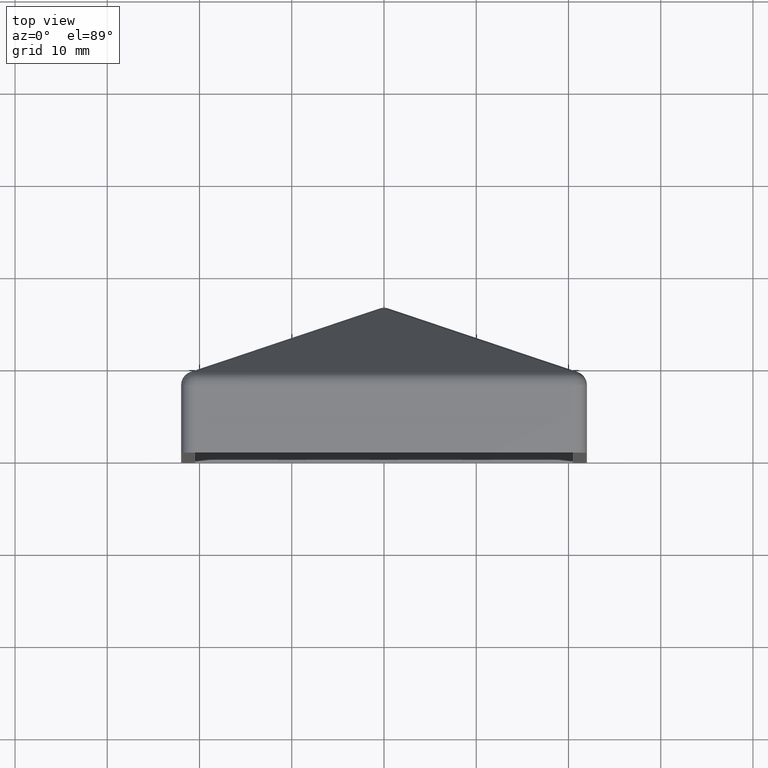
[diagram: clean part render]
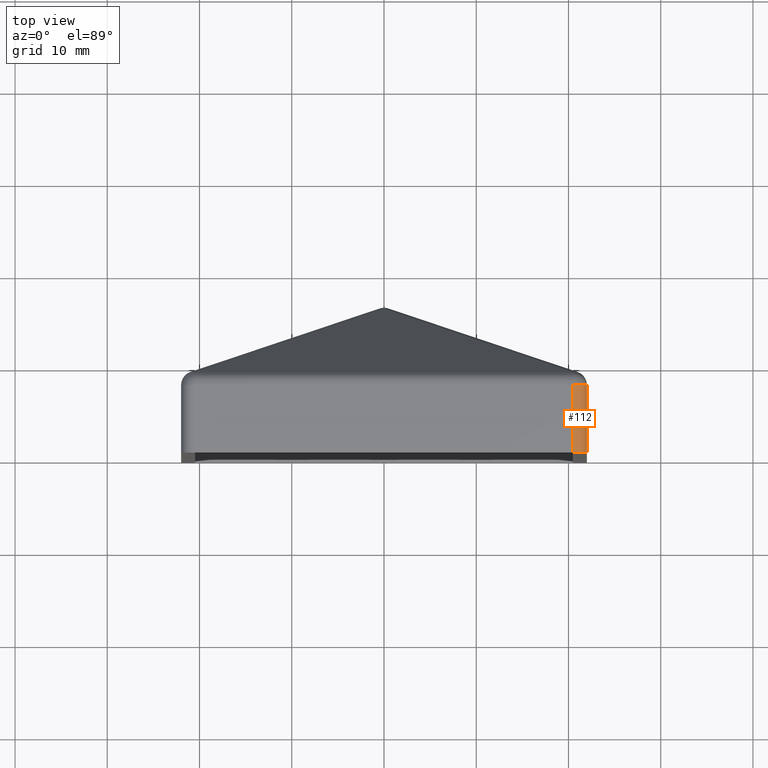
[diagram: same view with one face highlighted and labeled with its STEP entity id]
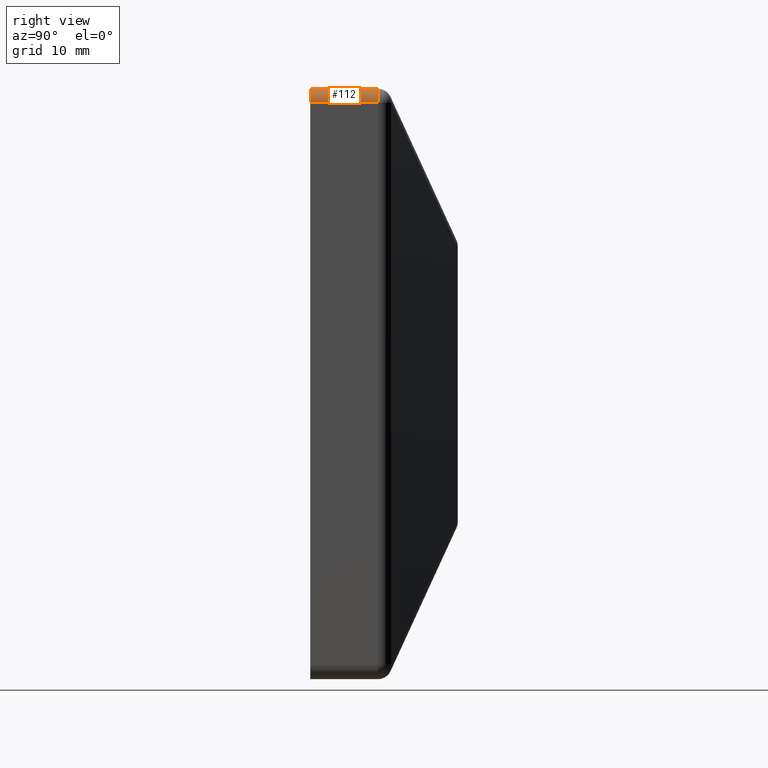
[diagram: same view with one face highlighted and labeled with its STEP entity id]
A machine part, top view. The second image highlights one B-rep face of the part: STEP entity #112.
A second angle (right view) of the same face is appended — the face is thin or edge-on in the first view.
In plain terms, the highlighted cylindrical surface (edge-blend (fillet) strip) has radius 1.5 mm, axis along (0, -1, 0).
Its self-contained STEP definition (entity closure, byte-faithful):
#63 = ORIENTED_EDGE ( 'NONE', *, *, #1324, .F. ) ;
#112 = ADVANCED_FACE ( 'NONE', ( #6051 ), #3829, .T. ) ;
#274 = VECTOR ( 'NONE', #5488, 1000.000000000000000 ) ;
#312 = VERTEX_POINT ( 'NONE', #11974 ) ;
#463 = CARTESIAN_POINT ( 'NONE',  ( 22.00000000000000711, 0.000000000000000000, 30.50000000000000000 ) ) ;
#603 = DIRECTION ( 'NONE',  ( 0.000000000000000000, 0.000000000000000000, -1.000000000000000000 ) ) ;
#755 = VECTOR ( 'NONE', #11979, 1000.000000000000000 ) ;
#1324 = EDGE_CURVE ( 'NONE', #2845, #312, #10168, .T. ) ;
#1914 = CARTESIAN_POINT ( 'NONE',  ( 20.50000000000000355, 0.000000000000000000, 30.50000000000000000 ) ) ;
#2845 = VERTEX_POINT ( 'NONE', #10707 ) ;
#3829 = CYLINDRICAL_SURFACE ( 'NONE', #7778, 1.500000000000001332 ) ;
#3915 = AXIS2_PLACEMENT_3D ( 'NONE', #11090, #6533, #12044 ) ;
#4172 = EDGE_CURVE ( 'NONE', #12239, #2845, #13911, .T. ) ;
#4224 = CIRCLE ( 'NONE', #3915, 1.500000000000001332 ) ;
#5208 = DIRECTION ( 'NONE',  ( 0.000000000000000000, 0.000000000000000000, 1.000000000000000000 ) ) ;
#5488 = DIRECTION ( 'NONE',  ( 0.000000000000000000, -1.000000000000000000, 0.000000000000000000 ) ) ;
#5838 = ORIENTED_EDGE ( 'NONE', *, *, #4172, .F. ) ;
#6051 = FACE_OUTER_BOUND ( 'NONE', #12299, .T. ) ;
#6234 = DIRECTION ( 'NONE',  ( 0.000000000000000000, -1.000000000000000000, 0.000000000000000000 ) ) ;
#6533 = DIRECTION ( 'NONE',  ( -1.156482317317870344E-15, 1.000000000000000000, 0.000000000000000000 ) ) ;
#7135 = CARTESIAN_POINT ( 'NONE',  ( 20.50000000000000355, 30.00000000000000000, 30.50000000000000000 ) ) ;
#7497 = CARTESIAN_POINT ( 'NONE',  ( 22.00000000000000711, 7.350000000000001421, 30.50000000000000000 ) ) ;
#7778 = AXIS2_PLACEMENT_3D ( 'NONE', #7135, #6234, #603 ) ;
#8784 = CARTESIAN_POINT ( 'NONE',  ( 20.50000000000000355, 30.00000000000000000, 32.00000000000000000 ) ) ;
#9527 = LINE ( 'NONE', #12175, #274 ) ;
#9747 = EDGE_CURVE ( 'NONE', #312, #13323, #4224, .T. ) ;
#10062 = ORIENTED_EDGE ( 'NONE', *, *, #10679, .F. ) ;
#10168 = LINE ( 'NONE', #8784, #755 ) ;
#10209 = AXIS2_PLACEMENT_3D ( 'NONE', #1914, #12960, #5208 ) ;
#10679 = EDGE_CURVE ( 'NONE', #13323, #12239, #9527, .T. ) ;
#10707 = CARTESIAN_POINT ( 'NONE',  ( 20.50000000000000355, 0.000000000000000000, 32.00000000000000000 ) ) ;
#11090 = CARTESIAN_POINT ( 'NONE',  ( 20.50000000000000355, 7.349999999999999645, 30.50000000000000000 ) ) ;
#11974 = CARTESIAN_POINT ( 'NONE',  ( 20.50000000000000355, 7.349999999999999645, 32.00000000000000000 ) ) ;
#11979 = DIRECTION ( 'NONE',  ( -0.000000000000000000, 1.000000000000000000, -0.000000000000000000 ) ) ;
#12044 = DIRECTION ( 'NONE',  ( -1.000000000000000000, -1.156482317317870344E-15, 0.000000000000000000 ) ) ;
#12067 = ORIENTED_EDGE ( 'NONE', *, *, #9747, .F. ) ;
#12175 = CARTESIAN_POINT ( 'NONE',  ( 22.00000000000000711, 30.00000000000000000, 30.50000000000000000 ) ) ;
#12239 = VERTEX_POINT ( 'NONE', #463 ) ;
#12299 = EDGE_LOOP ( 'NONE', ( #5838, #10062, #12067, #63 ) ) ;
#12960 = DIRECTION ( 'NONE',  ( -0.000000000000000000, -1.000000000000000000, -0.000000000000000000 ) ) ;
#13323 = VERTEX_POINT ( 'NONE', #7497 ) ;
#13911 = CIRCLE ( 'NONE', #10209, 1.500000000000001332 ) ;